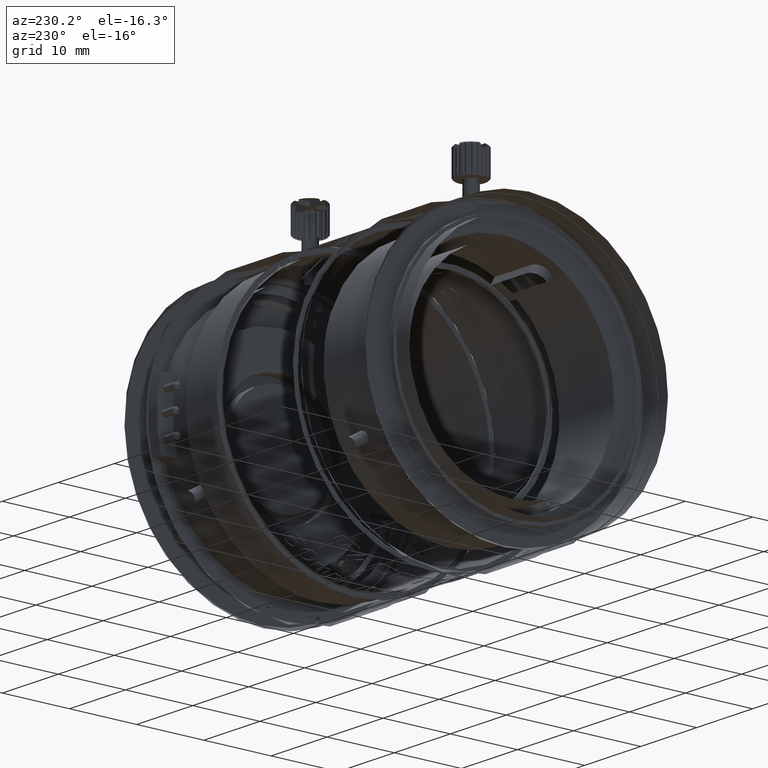
[diagram: clean part render]
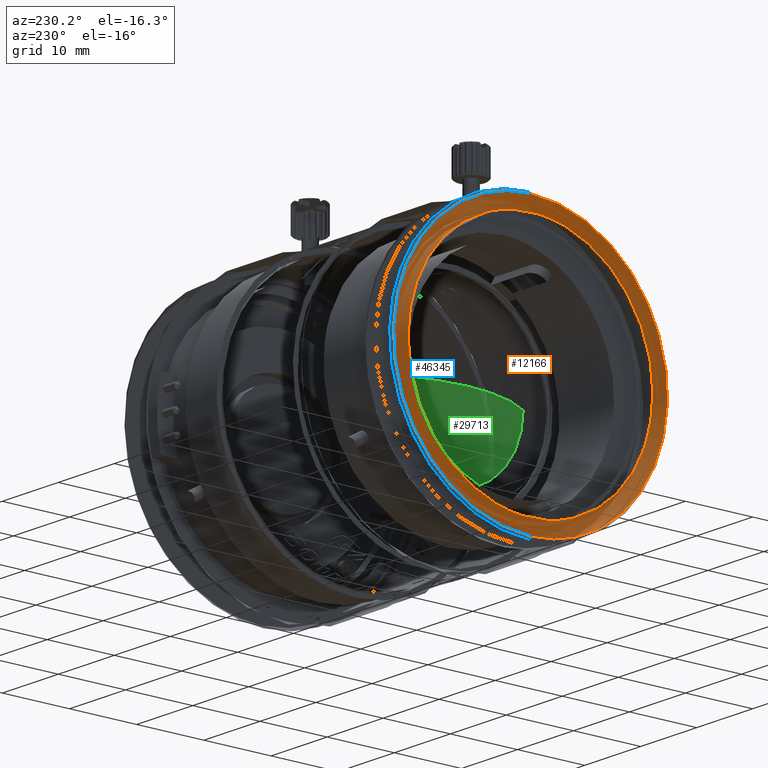
[diagram: same view with three faces highlighted in distinct colors, each labeled with its STEP entity id]
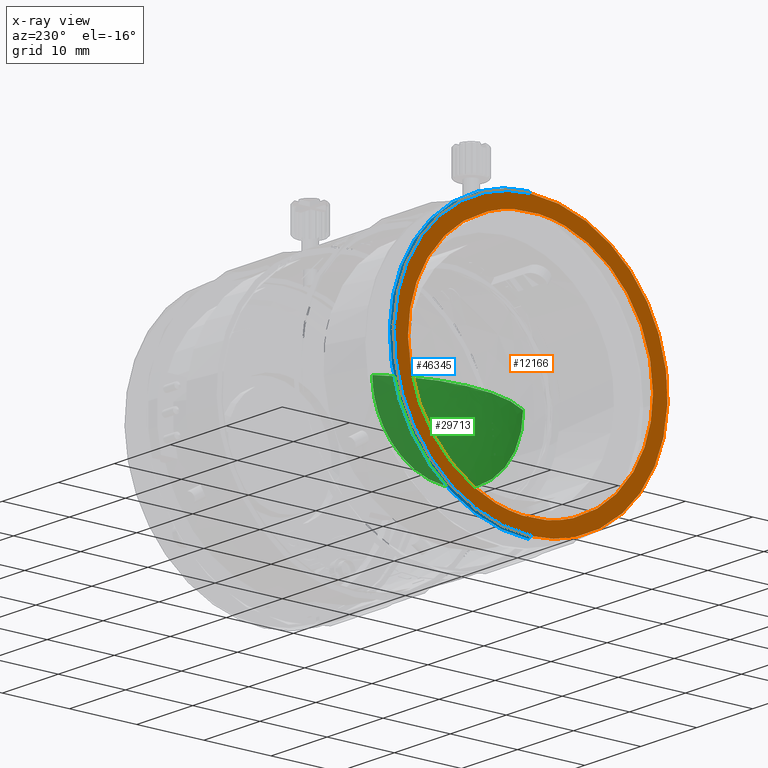
[diagram: x-ray of the same camera — body ghosted, the three highlighted faces saturated]
A machine part, auxiliary view with three faces highlighted in distinct colors.
The next image is the same camera in x-ray (body ghosted, the three faces saturated) — at least one of them is partly hidden behind the body in this view.
Their STEP definitions:

[orange] entity #12166 — the highlighted face is a freeform B-spline surface patch.
#705 = CARTESIAN_POINT ( 'NONE',  ( -52.32900092299998818, 15.92362451965119519, -9.179998218617607009 ) ) ;
#2365 = CARTESIAN_POINT ( 'NONE',  ( -52.32900092299999528, -19.86986418010880229, 5.337673374457589937 ) ) ;
#2420 = CARTESIAN_POINT ( 'NONE',  ( -52.32900092299999528, 17.82442077771517219, 10.27581065962887585 ) ) ;
#3226 = CARTESIAN_POINT ( 'NONE',  ( -52.32900092299999528, 20.64480000000000004, -20.64480000000000004 ) ) ;
#3416 = CARTESIAN_POINT ( 'NONE',  ( -52.32900092299998818, -2.672500629990405496, 20.39999998988159646 ) ) ;
#3472 = CARTESIAN_POINT ( 'NONE',  ( -52.32900092299998818, 19.86986418010884137, 5.337673374457529540 ) ) ;
#3761 = CARTESIAN_POINT ( 'NONE',  ( -52.32900092299999528, -20.39999998988160002, 2.672500629990370857 ) ) ;
#3895 = B_SPLINE_SURFACE_WITH_KNOTS ( 'NONE', 1, 1, ( 
 ( #30775, #3226 ),
 ( #10248, #15914 ) ),
 .UNSPECIFIED., .F., .F., .F.,
 ( 2, 2 ),
 ( 2, 2 ),
 ( 0.0000000000000000000, 1.000000000000000000 ),
 ( 0.0000000000000000000, 1.000000000000000000 ),
 .UNSPECIFIED. ) ;
#4520 = CARTESIAN_POINT ( 'NONE',  ( -52.32900092299999528, 9.179998218617672734, 15.92362451965117742 ) ) ;
#4967 = CARTESIAN_POINT ( 'NONE',  ( -52.32900092299999528, -4.768463867411138146, -17.75094190189762244 ) ) ;
#5664 = CARTESIAN_POINT ( 'NONE',  ( -52.32900092300000949, 17.75094190189761179, -4.768463867411196766 ) ) ;
#8761 = CARTESIAN_POINT ( 'NONE',  ( -52.32900092299999528, 17.82442077771519706, -10.27581065962880658 ) ) ;
#9055 = CARTESIAN_POINT ( 'NONE',  ( -52.32900092299999528, -12.53523504675197842, 16.31472163404161790 ) ) ;
#9401 = CARTESIAN_POINT ( 'NONE',  ( -52.32900092299999528, -2.672500629990280707, -20.39999998988159646 ) ) ;
#9464 = CARTESIAN_POINT ( 'NONE',  ( -52.32900092299999528, 2.387505166745568896, 18.22454399135040148 ) ) ;
#10154 = CARTESIAN_POINT ( 'NONE',  ( -52.32900092299999528, -18.22454399135040859, 2.387505166745601315 ) ) ;
#10172 = CARTESIAN_POINT ( 'NONE',  ( -52.32900092299999528, -1.221187307017514077E-09, -20.39999999662719787 ) ) ;
#10248 = CARTESIAN_POINT ( 'NONE',  ( -52.32900092299999528, -20.64480000000000004, 20.64480000000000004 ) ) ;
#10503 = CARTESIAN_POINT ( 'NONE',  ( -52.32900092299999528, 15.92362462975677495, 9.179998218617662076 ) ) ;
#10599 = CARTESIAN_POINT ( 'NONE',  ( -52.32900092299999528, -9.179998218617663852, -15.92362451965118098 ) ) ;
#12166 = ADVANCED_FACE ( 'NONE', ( #58686, #30092 ), #3895, .T. ) ;
#13707 = CARTESIAN_POINT ( 'NONE',  ( -52.32900092299999528, 2.672500629990405940, -20.39999998988159646 ) ) ;
#14062 = CARTESIAN_POINT ( 'NONE',  ( -52.32900092299999528, 10.27581065962880835, -17.82442077771519706 ) ) ;
#15914 = CARTESIAN_POINT ( 'NONE',  ( -52.32900092299999528, -20.64480000000000004, -20.64480000000000004 ) ) ;
#15920 = CARTESIAN_POINT ( 'NONE',  ( -52.32900092299999528, 9.179998218617612338, -15.92362462975679982 ) ) ;
#16268 = CARTESIAN_POINT ( 'NONE',  ( -52.32900092299999528, -18.22454399135040504, -2.387505166745496066 ) ) ;
#16966 = CARTESIAN_POINT ( 'NONE',  ( -52.32900092299999528, 2.387505166745576446, -18.22454399135040504 ) ) ;
#18626 = CARTESIAN_POINT ( 'NONE',  ( -52.32900092299999528, -17.82442077771517575, -10.27581065962888474 ) ) ;
#20800 = CARTESIAN_POINT ( 'NONE',  ( -52.32900092299998818, 18.22454399135040504, 2.387505166745490293 ) ) ;
#22653 = CARTESIAN_POINT ( 'NONE',  ( -52.32900092299999528, -2.387505166745576002, -18.22454399135040504 ) ) ;
#23993 = CARTESIAN_POINT ( 'NONE',  ( -52.32900092300000239, 5.337673374457594377, -19.86986418010880229 ) ) ;
#24341 = CARTESIAN_POINT ( 'NONE',  ( -52.32900092300000949, 5.337673374457537534, 19.86986418010883426 ) ) ;
#25030 = CARTESIAN_POINT ( 'NONE',  ( -52.32900092299999528, -5.578813255617010371E-09, 20.39999999662719787 ) ) ;
#25326 = CARTESIAN_POINT ( 'NONE',  ( -52.32900092299999528, -20.39999998988160002, -2.672500629990369969 ) ) ;
#26007 = ORIENTED_EDGE ( 'NONE', *, *, #35547, .T. ) ;
#26354 = CARTESIAN_POINT ( 'NONE',  ( -52.32900092299999528, -5.337673374457538422, -19.86986418010882360 ) ) ;
#27130 = CARTESIAN_POINT ( 'NONE',  ( -52.32900092299998818, 14.57491974734404394, 11.19847757159995538 ) ) ;
#27248 = VERTEX_POINT ( 'NONE', #10172 ) ;
#27928 = CARTESIAN_POINT ( 'NONE',  ( -52.32900092299998818, 18.22454399135040504, -2.387505166745608864 ) ) ;
#29229 = CARTESIAN_POINT ( 'NONE',  ( -52.32900092299999528, -16.31472163404161790, 12.53523504675197842 ) ) ;
#30092 = FACE_OUTER_BOUND ( 'NONE', #35894, .T. ) ;
#30338 = CARTESIAN_POINT ( 'NONE',  ( -52.32900092299998818, 20.39999998988160002, -2.672500629990370413 ) ) ;
#30775 = CARTESIAN_POINT ( 'NONE',  ( -52.32900092299999528, 20.64480000000000004, 20.64480000000000004 ) ) ;
#31384 = CARTESIAN_POINT ( 'NONE',  ( -52.32900092299999528, -15.92362451965120052, 9.179998218617614114 ) ) ;
#31738 = CARTESIAN_POINT ( 'NONE',  ( -52.32900092300670281, 18.22454400112349759, -4.983888611681579658E-09 ) ) ;
#32191 = CARTESIAN_POINT ( 'NONE',  ( -52.32900092299999528, -15.92362462975677850, -9.179998218617653194 ) ) ;
#32441 = CARTESIAN_POINT ( 'NONE',  ( -52.32900092300000239, -11.19847757159998203, 14.57491974734402085 ) ) ;
#32888 = CARTESIAN_POINT ( 'NONE',  ( -52.32900092300670281, 18.22454400112349759, -4.983888611681579658E-09 ) ) ;
#33108 = VERTEX_POINT ( 'NONE', #41637 ) ;
#34585 = CARTESIAN_POINT ( 'NONE',  ( -52.32900092300000239, 2.672500629990277599, 20.39999998988160357 ) ) ;
#35286 = CARTESIAN_POINT ( 'NONE',  ( -52.32900092299999528, -1.221187307017514077E-09, -20.39999999662719787 ) ) ;
#35547 = EDGE_CURVE ( 'NONE', #33108, #61328, #50934, .T. ) ;
#35644 = CARTESIAN_POINT ( 'NONE',  ( -52.32900092299999528, 16.31472163404164633, 12.53523504675194999 ) ) ;
#35894 = EDGE_LOOP ( 'NONE', ( #38380, #63860 ) ) ;
#35935 = CARTESIAN_POINT ( 'NONE',  ( -52.32900092300000949, -5.337673374457579278, 19.86986418010880229 ) ) ;
#35990 = CARTESIAN_POINT ( 'NONE',  ( -52.32900092299998818, 19.86986418010879873, -5.337673374457590825 ) ) ;
#36181 = EDGE_CURVE ( 'NONE', #61328, #33108, #39913, .T. ) ;
#36703 = CARTESIAN_POINT ( 'NONE',  ( -52.32900092300000239, -17.75094190189760823, 4.768463867411189661 ) ) ;
#36892 = B_SPLINE_CURVE_WITH_KNOTS ( 'NONE', 3,
 ( #46916, #3416, #35935, #57477, #9055, #29229, #50787, #2365, #3761, #25326, #45513, #18626, #37325, #53579, #69812, #26354, #9401, #41604 ),
 .UNSPECIFIED., .F., .F.,
 ( 4, 2, 2, 2, 2, 2, 2, 2, 4 ),
 ( 0.0000000000000000000, 0.3926990816987244171, 0.7853981633974488341, 1.178097245096173307, 1.570796326794897668, 1.963495408493622030, 2.356194490192346613, 2.748893571891070753, 3.141592653589795336 ),
 .UNSPECIFIED. ) ;
#37055 = CARTESIAN_POINT ( 'NONE',  ( -52.32900092299999528, 4.768463867411135482, 17.75094190189763310 ) ) ;
#37325 = CARTESIAN_POINT ( 'NONE',  ( -52.32900092299999528, -16.31472163404163922, -12.53523504675194111 ) ) ;
#37736 = CARTESIAN_POINT ( 'NONE',  ( -52.32900092300670281, -18.22454400112349759, -1.090959892956340046E-09 ) ) ;
#38380 = ORIENTED_EDGE ( 'NONE', *, *, #55941, .T. ) ;
#39913 = B_SPLINE_CURVE_WITH_KNOTS ( 'NONE', 3,
 ( #32888, #27928, #5664, #705, #53395, #65384, #15920, #42809, #16966, #22653, #4967, #10599, #43160, #48097, #32191, #64690, #16268, #54098 ),
 .UNSPECIFIED., .F., .F.,
 ( 4, 2, 2, 2, 2, 2, 2, 2, 4 ),
 ( 0.0000000000000000000, 0.3926990816987244171, 0.7853981633974488341, 1.178097245096173307, 1.570796326794897668, 1.963495408493622030, 2.356194490192346613, 2.748893571891070753, 3.141592653589795336 ),
 .UNSPECIFIED. ) ;
#40253 = CARTESIAN_POINT ( 'NONE',  ( -52.32900092300000239, 16.31472163404162501, -12.53523504675198907 ) ) ;
#41604 = CARTESIAN_POINT ( 'NONE',  ( -52.32900092299999528, -1.221187307017514077E-09, -20.39999999662719787 ) ) ;
#41637 = CARTESIAN_POINT ( 'NONE',  ( -52.32900092300670281, -18.22454400112349759, -1.090959892956340046E-09 ) ) ;
#42809 = CARTESIAN_POINT ( 'NONE',  ( -52.32900092299999528, 4.768463867411193213, -17.75094179179200893 ) ) ;
#43160 = CARTESIAN_POINT ( 'NONE',  ( -52.32900092299999528, -11.19847757159995005, -14.57491974734404927 ) ) ;
#44860 = EDGE_LOOP ( 'NONE', ( #26007, #50650 ) ) ;
#45513 = CARTESIAN_POINT ( 'NONE',  ( -52.32900092299999528, -19.86986418010883071, -5.337673374457513553 ) ) ;
#45570 = CARTESIAN_POINT ( 'NONE',  ( -52.32900092299999528, 12.53523504675194467, 16.31472163404164988 ) ) ;
#46916 = CARTESIAN_POINT ( 'NONE',  ( -52.32900092299999528, -5.578813255617010371E-09, 20.39999999662719787 ) ) ;
#47013 = B_SPLINE_CURVE_WITH_KNOTS ( 'NONE', 3,
 ( #35286, #13707, #23993, #14062, #67790, #40253, #8761, #35990, #30338, #57539, #3472, #2420, #35644, #45570, #61791, #24341, #34585, #25030 ),
 .UNSPECIFIED., .F., .F.,
 ( 4, 2, 2, 2, 2, 2, 2, 2, 4 ),
 ( 0.0000000000000000000, 0.3926990816987245281, 0.7853981633974488341, 1.178097245096173307, 1.570796326794897668, 1.963495408493622030, 2.356194490192346613, 2.748893571891071197, 3.141592653589795336 ),
 .UNSPECIFIED. ) ;
#47326 = CARTESIAN_POINT ( 'NONE',  ( -52.32900092299999528, -9.179998218617603456, 15.92362462975680337 ) ) ;
#47536 = CARTESIAN_POINT ( 'NONE',  ( -52.32900092300670281, 18.22454400112349759, -4.983888611681579658E-09 ) ) ;
#48097 = CARTESIAN_POINT ( 'NONE',  ( -52.32900092299999528, -14.57491974734404394, -11.19847757159995538 ) ) ;
#49874 = VERTEX_POINT ( 'NONE', #56241 ) ;
#50650 = ORIENTED_EDGE ( 'NONE', *, *, #36181, .T. ) ;
#50787 = CARTESIAN_POINT ( 'NONE',  ( -52.32900092299999528, -17.82442077771519706, 10.27581065962881723 ) ) ;
#50934 = B_SPLINE_CURVE_WITH_KNOTS ( 'NONE', 3,
 ( #37736, #10154, #36703, #31384, #69884, #32441, #47326, #59286, #57900, #9464, #37055, #4520, #68497, #27130, #10503, #69191, #20800, #31738 ),
 .UNSPECIFIED., .F., .F.,
 ( 4, 2, 2, 2, 2, 2, 2, 2, 4 ),
 ( 0.0000000000000000000, 0.3926990816987245281, 0.7853981633974488341, 1.178097245096173307, 1.570796326794897668, 1.963495408493621808, 2.356194490192346169, 2.748893571891070753, 3.141592653589795336 ),
 .UNSPECIFIED. ) ;
#53395 = CARTESIAN_POINT ( 'NONE',  ( -52.32900092299999528, 14.57491974734401730, -11.19847757159998203 ) ) ;
#53579 = CARTESIAN_POINT ( 'NONE',  ( -52.32900092299999528, -12.53523504675195710, -16.31472163404164633 ) ) ;
#54098 = CARTESIAN_POINT ( 'NONE',  ( -52.32900092300670281, -18.22454400112349759, -1.090959892956340046E-09 ) ) ;
#55941 = EDGE_CURVE ( 'NONE', #49874, #27248, #36892, .T. ) ;
#56241 = CARTESIAN_POINT ( 'NONE',  ( -52.32900092299999528, -5.578813255617010371E-09, 20.39999999662719787 ) ) ;
#57477 = CARTESIAN_POINT ( 'NONE',  ( -52.32900092299998818, -10.27581065962882079, 17.82442077771519351 ) ) ;
#57539 = CARTESIAN_POINT ( 'NONE',  ( -52.32900092299998818, 20.39999998988160357, 2.672500629990369969 ) ) ;
#57900 = CARTESIAN_POINT ( 'NONE',  ( -52.32900092299999528, -2.387505166745570229, 18.22454399135040504 ) ) ;
#58686 = FACE_BOUND ( 'NONE', #44860, .T. ) ;
#59286 = CARTESIAN_POINT ( 'NONE',  ( -52.32900092299998818, -4.768463867411197654, 17.75094179179200182 ) ) ;
#61328 = VERTEX_POINT ( 'NONE', #47536 ) ;
#61791 = CARTESIAN_POINT ( 'NONE',  ( -52.32900092299998107, 10.27581065962886875, 17.82442077771517219 ) ) ;
#63860 = ORIENTED_EDGE ( 'NONE', *, *, #67685, .T. ) ;
#64690 = CARTESIAN_POINT ( 'NONE',  ( -52.32900092299999528, -17.75094179179203024, -4.768463867411149693 ) ) ;
#65384 = CARTESIAN_POINT ( 'NONE',  ( -52.32900092299999528, 11.19847757159998558, -14.57491974734402085 ) ) ;
#67685 = EDGE_CURVE ( 'NONE', #27248, #49874, #47013, .T. ) ;
#67790 = CARTESIAN_POINT ( 'NONE',  ( -52.32900092299999528, 12.53523504675198197, -16.31472163404160725 ) ) ;
#68497 = CARTESIAN_POINT ( 'NONE',  ( -52.32900092299998818, 11.19847757159995183, 14.57491974734404394 ) ) ;
#69191 = CARTESIAN_POINT ( 'NONE',  ( -52.32900092300000239, 17.75094179179203024, 4.768463867411141699 ) ) ;
#69812 = CARTESIAN_POINT ( 'NONE',  ( -52.32900092299999528, -10.27581065962885987, -17.82442077771517575 ) ) ;
#69884 = CARTESIAN_POINT ( 'NONE',  ( -52.32900092299999528, -14.57491974734402440, 11.19847757159998380 ) ) ;

[blue] entity #46345 — the highlighted face is a freeform B-spline surface patch.
#2420 = CARTESIAN_POINT ( 'NONE',  ( -52.32900092299999528, 17.82442077771517219, 10.27581065962887585 ) ) ;
#3023 = CARTESIAN_POINT ( 'NONE',  ( -52.02900092299999812, 0.0000000000000000000, -20.69999999999999929 ) ) ;
#3472 = CARTESIAN_POINT ( 'NONE',  ( -52.32900092299998818, 19.86986418010884137, 5.337673374457529540 ) ) ;
#5008 = B_SPLINE_CURVE_WITH_KNOTS ( 'NONE', 1,
 ( #61946, #8567 ),
 .UNSPECIFIED., .F., .F.,
 ( 2, 2 ),
 ( 5.921189465164640377E-15, 1.000000000000000000 ),
 .UNSPECIFIED. ) ;
#5152 = CARTESIAN_POINT ( 'NONE',  ( -52.32900092299999528, -1.221187307017514077E-09, -20.39999999662719787 ) ) ;
#5884 = ORIENTED_EDGE ( 'NONE', *, *, #11088, .T. ) ;
#7072 = ORIENTED_EDGE ( 'NONE', *, *, #18588, .T. ) ;
#8567 = CARTESIAN_POINT ( 'NONE',  ( -52.02900092300500035, -8.491281940534709011E-09, 20.69999999999999929 ) ) ;
#8761 = CARTESIAN_POINT ( 'NONE',  ( -52.32900092299999528, 17.82442077771519706, -10.27581065962880658 ) ) ;
#9011 = CARTESIAN_POINT ( 'NONE',  ( -52.32900092300000239, 20.39999999754901339, 11.95004333371634786 ) ) ;
#10172 = CARTESIAN_POINT ( 'NONE',  ( -52.32900092299999528, -1.221187307017514077E-09, -20.39999999662719787 ) ) ;
#11088 = EDGE_CURVE ( 'NONE', #51719, #49981, #57028, .T. ) ;
#13707 = CARTESIAN_POINT ( 'NONE',  ( -52.32900092299999528, 2.672500629990405940, -20.39999998988159646 ) ) ;
#14062 = CARTESIAN_POINT ( 'NONE',  ( -52.32900092299999528, 10.27581065962880835, -17.82442077771519706 ) ) ;
#14508 = CARTESIAN_POINT ( 'NONE',  ( -52.02900092300001234, 12.12577925235761356, 20.70000000497407555 ) ) ;
#14810 =( BOUNDED_SURFACE ( )  B_SPLINE_SURFACE ( 1, 3, ( 
 ( #46522, #68042, #41562, #41204, #9011, #52502, #63087 ),
 ( #3023, #25630, #19988, #20342, #57096, #24588, #62745 ) ),
 .UNSPECIFIED., .F., .F., .F. ) 
 B_SPLINE_SURFACE_WITH_KNOTS ( ( 2, 2 ),
 ( 4, 3, 4 ),
 ( 5.921189465164640377E-15, 1.000000000000000000 ),
 ( 0.0000000000000000000, 0.5000000000000000000, 1.000000000000000000 ),
 .UNSPECIFIED. ) 
 GEOMETRIC_REPRESENTATION_ITEM ( )  RATIONAL_B_SPLINE_SURFACE ( (
 ( 1.000000000000000000, 0.8047378540760217192, 0.8047378540760217192, 1.000000000000000000, 0.8047378540760217192, 0.8047378540760217192, 1.000000000000000000),
 ( 1.000000000000000000, 0.8047378540760217192, 0.8047378540760217192, 1.000000000000000000, 0.8047378540760217192, 0.8047378540760217192, 1.000000000000000000) ) ) 
 REPRESENTATION_ITEM ( '' )  SURFACE ( )  );
#18130 = EDGE_LOOP ( 'NONE', ( #19832, #66271, #7072, #5884 ) ) ;
#18588 = EDGE_CURVE ( 'NONE', #27248, #51719, #66423, .T. ) ;
#19676 = CARTESIAN_POINT ( 'NONE',  ( -52.02900092300500035, -1.858718915828130209E-09, -20.69999999999999929 ) ) ;
#19832 = ORIENTED_EDGE ( 'NONE', *, *, #33320, .F. ) ;
#19988 = CARTESIAN_POINT ( 'NONE',  ( -52.02900092300000523, 20.70000000248703387, -12.12577925660325029 ) ) ;
#20342 = CARTESIAN_POINT ( 'NONE',  ( -52.02900092299999812, 20.69999999999999929, 4.245640970267354505E-09 ) ) ;
#23993 = CARTESIAN_POINT ( 'NONE',  ( -52.32900092300000239, 5.337673374457594377, -19.86986418010880229 ) ) ;
#24341 = CARTESIAN_POINT ( 'NONE',  ( -52.32900092300000949, 5.337673374457537534, 19.86986418010883426 ) ) ;
#24588 = CARTESIAN_POINT ( 'NONE',  ( -52.02900092300000523, 12.12577925235760645, 20.70000000497408266 ) ) ;
#24774 = CARTESIAN_POINT ( 'NONE',  ( -52.02900092299999812, 20.70000000248703387, -12.12577925660325029 ) ) ;
#25030 = CARTESIAN_POINT ( 'NONE',  ( -52.32900092299999528, -5.578813255617010371E-09, 20.39999999662719787 ) ) ;
#25630 = CARTESIAN_POINT ( 'NONE',  ( -52.02900092300000523, 12.12577926084888880, -20.69999999999999929 ) ) ;
#27248 = VERTEX_POINT ( 'NONE', #10172 ) ;
#30338 = CARTESIAN_POINT ( 'NONE',  ( -52.32900092299998818, 20.39999998988160002, -2.672500629990370413 ) ) ;
#31135 = CARTESIAN_POINT ( 'NONE',  ( -52.02900092300500035, -8.491281940534709011E-09, 20.69999999999999929 ) ) ;
#33320 = EDGE_CURVE ( 'NONE', #49874, #49981, #5008, .T. ) ;
#34585 = CARTESIAN_POINT ( 'NONE',  ( -52.32900092300000239, 2.672500629990277599, 20.39999998988160357 ) ) ;
#35286 = CARTESIAN_POINT ( 'NONE',  ( -52.32900092299999528, -1.221187307017514077E-09, -20.39999999662719787 ) ) ;
#35644 = CARTESIAN_POINT ( 'NONE',  ( -52.32900092299999528, 16.31472163404164633, 12.53523504675194999 ) ) ;
#35735 = CARTESIAN_POINT ( 'NONE',  ( -52.02900092300500035, -1.858718915828130209E-09, -20.69999999999999929 ) ) ;
#35990 = CARTESIAN_POINT ( 'NONE',  ( -52.32900092299998818, 19.86986418010879873, -5.337673374457590825 ) ) ;
#40253 = CARTESIAN_POINT ( 'NONE',  ( -52.32900092300000239, 16.31472163404162501, -12.53523504675198907 ) ) ;
#41046 = CARTESIAN_POINT ( 'NONE',  ( -52.02900092299999812, 12.12577926084888524, -20.69999999999999929 ) ) ;
#41204 = CARTESIAN_POINT ( 'NONE',  ( -52.32900092299999528, 20.40000000000000213, 4.184109941712756124E-09 ) ) ;
#41562 = CARTESIAN_POINT ( 'NONE',  ( -52.32900092300000239, 20.40000000245099798, -11.95004332534812796 ) ) ;
#45570 = CARTESIAN_POINT ( 'NONE',  ( -52.32900092299999528, 12.53523504675194467, 16.31472163404164988 ) ) ;
#46345 = ADVANCED_FACE ( 'NONE', ( #63435 ), #14810, .T. ) ;
#46522 = CARTESIAN_POINT ( 'NONE',  ( -52.32900092299999528, 0.0000000000000000000, -20.40000000000000213 ) ) ;
#47013 = B_SPLINE_CURVE_WITH_KNOTS ( 'NONE', 3,
 ( #35286, #13707, #23993, #14062, #67790, #40253, #8761, #35990, #30338, #57539, #3472, #2420, #35644, #45570, #61791, #24341, #34585, #25030 ),
 .UNSPECIFIED., .F., .F.,
 ( 4, 2, 2, 2, 2, 2, 2, 2, 4 ),
 ( 0.0000000000000000000, 0.3926990816987245281, 0.7853981633974488341, 1.178097245096173307, 1.570796326794897668, 1.963495408493622030, 2.356194490192346613, 2.748893571891071197, 3.141592653589795336 ),
 .UNSPECIFIED. ) ;
#48625 = CARTESIAN_POINT ( 'NONE',  ( -52.02900092300500035, -1.858718915828130209E-09, -20.69999999999999929 ) ) ;
#49874 = VERTEX_POINT ( 'NONE', #56241 ) ;
#49981 = VERTEX_POINT ( 'NONE', #31135 ) ;
#51719 = VERTEX_POINT ( 'NONE', #19676 ) ;
#52337 = CARTESIAN_POINT ( 'NONE',  ( -52.02900092300500035, -8.491281940534709011E-09, 20.69999999999999929 ) ) ;
#52502 = CARTESIAN_POINT ( 'NONE',  ( -52.32900092300000239, 11.95004332116402246, 20.40000000490198673 ) ) ;
#56241 = CARTESIAN_POINT ( 'NONE',  ( -52.32900092299999528, -5.578813255617010371E-09, 20.39999999662719787 ) ) ;
#57028 =( BOUNDED_CURVE ( )  B_SPLINE_CURVE ( 3, ( #35735, #41046, #24774, #62932, #68229, #14508, #52337 ),
 .UNSPECIFIED., .F., .F. ) 
 B_SPLINE_CURVE_WITH_KNOTS ( ( 4, 3, 4 ),
 ( -3.141592653589795336, -1.570796326794897668, 0.0000000000000000000 ),
 .UNSPECIFIED. ) 
 CURVE ( )  GEOMETRIC_REPRESENTATION_ITEM ( )  RATIONAL_B_SPLINE_CURVE ( ( 1.000000000000000000, 0.8047378540760217192, 0.8047378540760217192, 1.000000000000000000, 0.8047378540760217192, 0.8047378540760217192, 1.000000000000000000 ) ) 
 REPRESENTATION_ITEM ( '' )  );
#57096 = CARTESIAN_POINT ( 'NONE',  ( -52.02900092300000523, 20.69999999751296471, 12.12577926509453263 ) ) ;
#57539 = CARTESIAN_POINT ( 'NONE',  ( -52.32900092299998818, 20.39999998988160357, 2.672500629990369969 ) ) ;
#61791 = CARTESIAN_POINT ( 'NONE',  ( -52.32900092299998107, 10.27581065962886875, 17.82442077771517219 ) ) ;
#61946 = CARTESIAN_POINT ( 'NONE',  ( -52.32900092299999528, -5.578813255617010371E-09, 20.39999999662719787 ) ) ;
#62745 = CARTESIAN_POINT ( 'NONE',  ( -52.02900092299999812, -8.491281940534709011E-09, 20.69999999999999929 ) ) ;
#62932 = CARTESIAN_POINT ( 'NONE',  ( -52.02900092299999812, 20.69999999999999929, 4.245636373944032723E-09 ) ) ;
#63087 = CARTESIAN_POINT ( 'NONE',  ( -52.32900092299999528, -8.368219883425512247E-09, 20.40000000000000213 ) ) ;
#63435 = FACE_OUTER_BOUND ( 'NONE', #18130, .T. ) ;
#66271 = ORIENTED_EDGE ( 'NONE', *, *, #67685, .F. ) ;
#66423 = B_SPLINE_CURVE_WITH_KNOTS ( 'NONE', 1,
 ( #5152, #48625 ),
 .UNSPECIFIED., .F., .F.,
 ( 2, 2 ),
 ( 5.921189465164640377E-15, 1.000000000000000000 ),
 .UNSPECIFIED. ) ;
#67685 = EDGE_CURVE ( 'NONE', #27248, #49874, #47013, .T. ) ;
#67790 = CARTESIAN_POINT ( 'NONE',  ( -52.32900092299999528, 12.53523504675198197, -16.31472163404160725 ) ) ;
#68042 = CARTESIAN_POINT ( 'NONE',  ( -52.32900092300000239, 11.95004332953224058, -20.40000000000000213 ) ) ;
#68229 = CARTESIAN_POINT ( 'NONE',  ( -52.02900092300001234, 20.69999999751296826, 12.12577926509452197 ) ) ;

[green] entity #29713 — the highlighted face is a freeform B-spline surface patch.
#559 = VERTEX_POINT ( 'NONE', #33492 ) ;
#1089 = VERTEX_POINT ( 'NONE', #43687 ) ;
#1961 = CARTESIAN_POINT ( 'NONE',  ( -37.50166327523875509, -11.28426159139234564, 0.0000000000000000000 ) ) ;
#3738 = EDGE_CURVE ( 'NONE', #559, #57517, #5414, .T. ) ;
#4729 = CARTESIAN_POINT ( 'NONE',  ( -41.01830700000000007, 0.0000000000000000000, 0.0000000000000000000 ) ) ;
#5414 =( BOUNDED_CURVE ( )  B_SPLINE_CURVE ( 3, ( #68128, #20078, #14754, #57879 ),
 .UNSPECIFIED., .F., .F. ) 
 B_SPLINE_CURVE_WITH_KNOTS ( ( 4, 4 ),
 ( 0.09409493947525769675, 1.000000000000000000 ),
 .UNSPECIFIED. ) 
 CURVE ( )  GEOMETRIC_REPRESENTATION_ITEM ( )  RATIONAL_B_SPLINE_CURVE ( ( 0.9907542564916049788, 0.9641648415928409932, 0.9672467560956390376, 1.000000000000000000 ) ) 
 REPRESENTATION_ITEM ( '' )  );
#6906 = CARTESIAN_POINT ( 'NONE',  ( -41.01830700000002139, 4.028598582999998179, -8.057197166999996440 ) ) ;
#8294 = CARTESIAN_POINT ( 'NONE',  ( -39.82898474499996411, 7.884394510000006129, -15.76878902100001234 ) ) ;
#9503 = EDGE_LOOP ( 'NONE', ( #37241, #21320, #17426 ) ) ;
#11854 = CARTESIAN_POINT ( 'NONE',  ( -41.01830700000000007, 0.0000000000000000000, 0.0000000000000000000 ) ) ;
#12546 = CARTESIAN_POINT ( 'NONE',  ( -37.54609571299999971, -11.21935247399999902, 0.0000000000000000000 ) ) ;
#12895 = CARTESIAN_POINT ( 'NONE',  ( -41.01830700000003560, 0.0000000000000000000, 0.0000000000000000000 ) ) ;
#14754 = CARTESIAN_POINT ( 'NONE',  ( -41.01830700000000718, 4.028598583000001732, 0.0000000000000000000 ) ) ;
#17426 = ORIENTED_EDGE ( 'NONE', *, *, #58679, .T. ) ;
#18905 = CARTESIAN_POINT ( 'NONE',  ( -37.47944705635816121, -11.31671615008851006, 0.0000000000000000000 ) ) ;
#19769 =( BOUNDED_CURVE ( )  B_SPLINE_CURVE ( 3, ( #48136, #26912, #31873, #31520 ),
 .UNSPECIFIED., .F., .F. ) 
 B_SPLINE_CURVE_WITH_KNOTS ( ( 4, 4 ),
 ( 0.0000000000000000000, 0.9059050605247560561 ),
 .UNSPECIFIED. ) 
 CURVE ( )  GEOMETRIC_REPRESENTATION_ITEM ( )  RATIONAL_B_SPLINE_CURVE ( ( 1.000000000000000000, 0.9672467560956390376, 0.9641648415928409932, 0.9907542564916049788 ) ) 
 REPRESENTATION_ITEM ( '' )  );
#20078 = CARTESIAN_POINT ( 'NONE',  ( -39.82898474500000674, 7.884394510000005241, 0.0000000000000000000 ) ) ;
#21320 = ORIENTED_EDGE ( 'NONE', *, *, #3738, .T. ) ;
#23190 = CARTESIAN_POINT ( 'NONE',  ( -41.01830700000000718, -4.028598583000001732, 0.0000000000000000000 ) ) ;
#23519 = CARTESIAN_POINT ( 'NONE',  ( -41.01830700000000007, 0.0000000000000000000, 0.0000000000000000000 ) ) ;
#26912 = CARTESIAN_POINT ( 'NONE',  ( -41.01830700000000718, -4.028598583000001732, 0.0000000000000000000 ) ) ;
#28814 = CARTESIAN_POINT ( 'NONE',  ( -37.52387949411940582, 11.25180703269616345, 0.0000000000000000000 ) ) ;
#29713 = ADVANCED_FACE ( 'NONE', ( #60284 ), #41139, .T. ) ;
#29865 = CARTESIAN_POINT ( 'NONE',  ( -37.54609571300000681, 11.21935247400000613, -22.43870494800001225 ) ) ;
#31520 = CARTESIAN_POINT ( 'NONE',  ( -37.54609571066909268, -11.21935247406107905, 0.0000000000000000000 ) ) ;
#31873 = CARTESIAN_POINT ( 'NONE',  ( -39.82898474500000674, -7.884394510000005241, 0.0000000000000000000 ) ) ;
#31912 = EDGE_CURVE ( 'NONE', #1089, #559, #52483, .T. ) ;
#32904 = CARTESIAN_POINT ( 'NONE',  ( -37.54609571066909268, -11.21935247406107905, 0.0000000000000000000 ) ) ;
#33492 = CARTESIAN_POINT ( 'NONE',  ( -37.54609571066909268, 11.21935247406107905, 0.0000000000000000000 ) ) ;
#33768 = CARTESIAN_POINT ( 'NONE',  ( -39.82898474500000674, 7.884394510000005241, 0.0000000000000000000 ) ) ;
#34122 = CARTESIAN_POINT ( 'NONE',  ( -37.50166327523873377, 11.28426159139233675, -22.56852318276523306 ) ) ;
#34464 = CARTESIAN_POINT ( 'NONE',  ( -41.01830700000000718, 4.028598583000001732, 0.0000000000000000000 ) ) ;
#37241 = ORIENTED_EDGE ( 'NONE', *, *, #31912, .T. ) ;
#38563 = CARTESIAN_POINT ( 'NONE',  ( -37.54609570950368891, -11.21935247910762001, -22.43870495821524003 ) ) ;
#39085 = CARTESIAN_POINT ( 'NONE',  ( -39.82898474499996411, -7.884394510000006129, -15.76878902100001234 ) ) ;
#40131 = CARTESIAN_POINT ( 'NONE',  ( -37.47944705635815410, 11.31671615008851006, -22.63343230014782748 ) ) ;
#41139 =( BOUNDED_SURFACE ( )  B_SPLINE_SURFACE ( 3, 3, ( 
 ( #11854, #12895, #50722, #23519 ),
 ( #23190, #61321, #6906, #34464 ),
 ( #60970, #39085, #8294, #33768 ),
 ( #12546, #61673, #29865, #44756 ),
 ( #44402, #50380, #66268, #28814 ),
 ( #1961, #56019, #34122, #55338 ),
 ( #18905, #45109, #40131, #51424 ) ),
 .UNSPECIFIED., .F., .F., .F. ) 
 B_SPLINE_SURFACE_WITH_KNOTS ( ( 4, 3, 4 ),
 ( 4, 4 ),
 ( 0.0000000000000000000, 0.9059050605247700449, 0.9149641111300179652 ),
 ( 0.0000000000000000000, 1.000000000000000000 ),
 .UNSPECIFIED. ) 
 GEOMETRIC_REPRESENTATION_ITEM ( )  RATIONAL_B_SPLINE_SURFACE ( (
 ( 1.000000000000000000, 0.3333333333333329818, 0.3333333333333329818, 1.000000000000000000),
 ( 0.9672467560956390376, 0.3224155853652130310, 0.3224155853652130310, 0.9672467560956390376),
 ( 0.9641648415928409932, 0.3213882805309470347, 0.3213882805309470347, 0.9641648415928409932),
 ( 0.9907542564916049788, 0.3302514188305349929, 0.3302514188305349929, 0.9907542564916049788),
 ( 0.9907542564916049788, 0.3302514188305349929, 0.3302514188305349929, 0.9907542564916049788),
 ( 0.9907542564916049788, 0.3302514188305349929, 0.3302514188305349929, 0.9907542564916049788),
 ( 0.9907542564916049788, 0.3302514188305349929, 0.3302514188305349929, 0.9907542564916049788) ) ) 
 REPRESENTATION_ITEM ( '' )  SURFACE ( )  );
#43687 = CARTESIAN_POINT ( 'NONE',  ( -37.54609571066909268, -11.21935247406107905, 0.0000000000000000000 ) ) ;
#44402 = CARTESIAN_POINT ( 'NONE',  ( -37.52387949411940582, -11.25180703269616345, 0.0000000000000000000 ) ) ;
#44756 = CARTESIAN_POINT ( 'NONE',  ( -37.54609571299999971, 11.21935247399999902, 0.0000000000000000000 ) ) ;
#45109 = CARTESIAN_POINT ( 'NONE',  ( -37.47944705635815410, -11.31671615008851006, -22.63343230014782748 ) ) ;
#48136 = CARTESIAN_POINT ( 'NONE',  ( -41.01830700000000007, 0.0000000000000000000, 0.0000000000000000000 ) ) ;
#50380 = CARTESIAN_POINT ( 'NONE',  ( -37.52387949411937029, -11.25180703269617766, -22.50361406538260667 ) ) ;
#50722 = CARTESIAN_POINT ( 'NONE',  ( -41.01830700000003560, 0.0000000000000000000, 0.0000000000000000000 ) ) ;
#51424 = CARTESIAN_POINT ( 'NONE',  ( -37.47944705635816121, 11.31671615008851006, 0.0000000000000000000 ) ) ;
#52483 =( BOUNDED_CURVE ( )  B_SPLINE_CURVE ( 3, ( #32904, #38563, #65057, #60097 ),
 .UNSPECIFIED., .F., .F. ) 
 B_SPLINE_CURVE_WITH_KNOTS ( ( 4, 4 ),
 ( 0.0000000000000000000, 3.141592653589795336 ),
 .UNSPECIFIED. ) 
 CURVE ( )  GEOMETRIC_REPRESENTATION_ITEM ( )  RATIONAL_B_SPLINE_CURVE ( ( 0.9907542564916049788, 0.3302514188305349929, 0.3302514188305349929, 0.9907542564916049788 ) ) 
 REPRESENTATION_ITEM ( '' )  );
#55338 = CARTESIAN_POINT ( 'NONE',  ( -37.50166327523875509, 11.28426159139234564, 0.0000000000000000000 ) ) ;
#56019 = CARTESIAN_POINT ( 'NONE',  ( -37.50166327523873377, -11.28426159139233675, -22.56852318276523306 ) ) ;
#57517 = VERTEX_POINT ( 'NONE', #4729 ) ;
#57879 = CARTESIAN_POINT ( 'NONE',  ( -41.01830700000000007, 0.0000000000000000000, 0.0000000000000000000 ) ) ;
#58679 = EDGE_CURVE ( 'NONE', #57517, #1089, #19769, .T. ) ;
#60097 = CARTESIAN_POINT ( 'NONE',  ( -37.54609571066909268, 11.21935247406107905, 0.0000000000000000000 ) ) ;
#60284 = FACE_OUTER_BOUND ( 'NONE', #9503, .T. ) ;
#60970 = CARTESIAN_POINT ( 'NONE',  ( -39.82898474500000674, -7.884394510000005241, 0.0000000000000000000 ) ) ;
#61321 = CARTESIAN_POINT ( 'NONE',  ( -41.01830700000002139, -4.028598582999998179, -8.057197166999996440 ) ) ;
#61673 = CARTESIAN_POINT ( 'NONE',  ( -37.54609571300000681, -11.21935247400000613, -22.43870494800001225 ) ) ;
#65057 = CARTESIAN_POINT ( 'NONE',  ( -37.54609570950368891, 11.21935247910762001, -22.43870495821524003 ) ) ;
#66268 = CARTESIAN_POINT ( 'NONE',  ( -37.52387949411937029, 11.25180703269617766, -22.50361406538260667 ) ) ;
#68128 = CARTESIAN_POINT ( 'NONE',  ( -37.54609571066909268, 11.21935247406107905, 0.0000000000000000000 ) ) ;